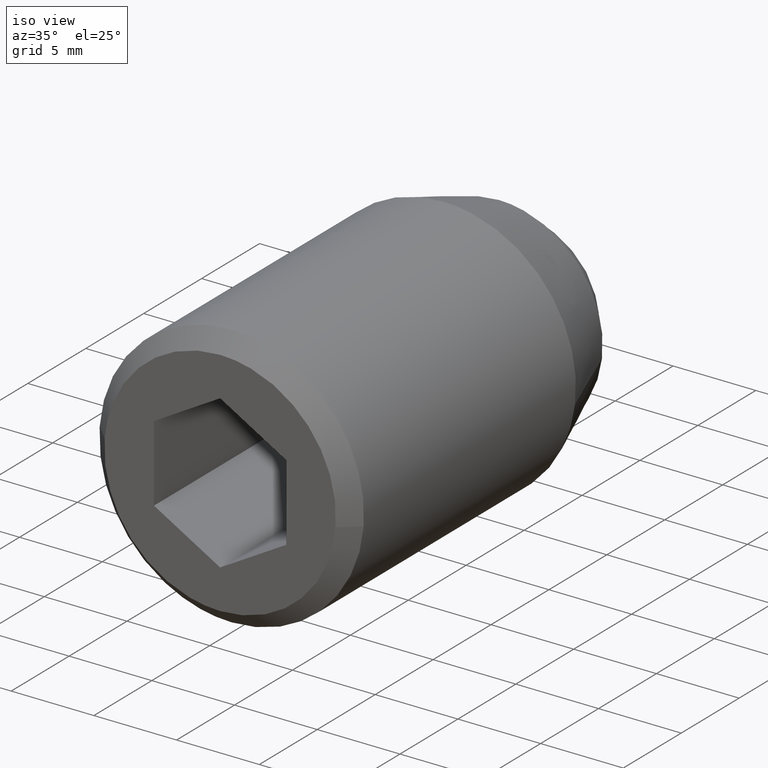
[diagram: clean part render]
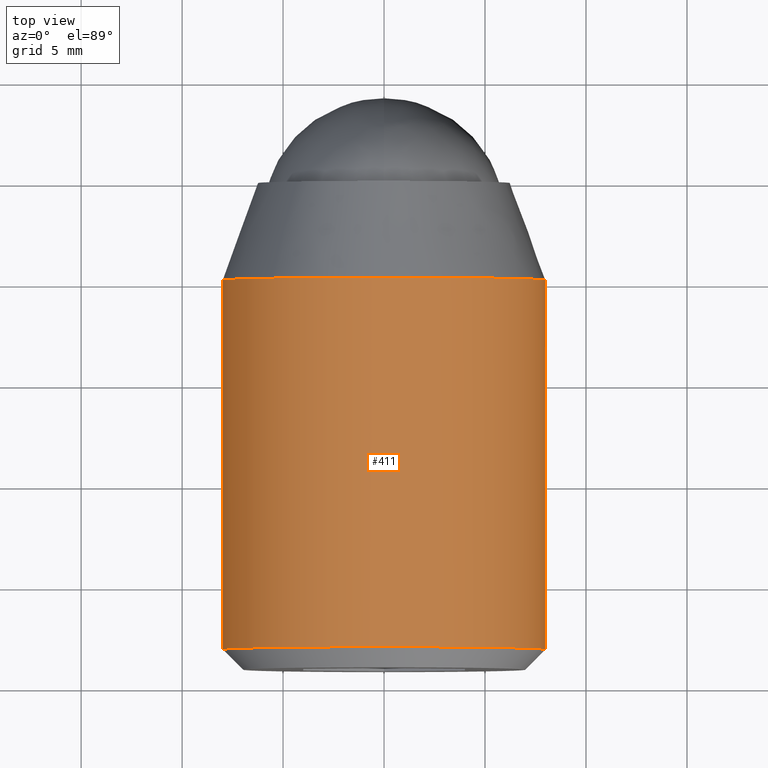
[diagram: tour spotlight — one face highlighted and labeled with its STEP entity id]
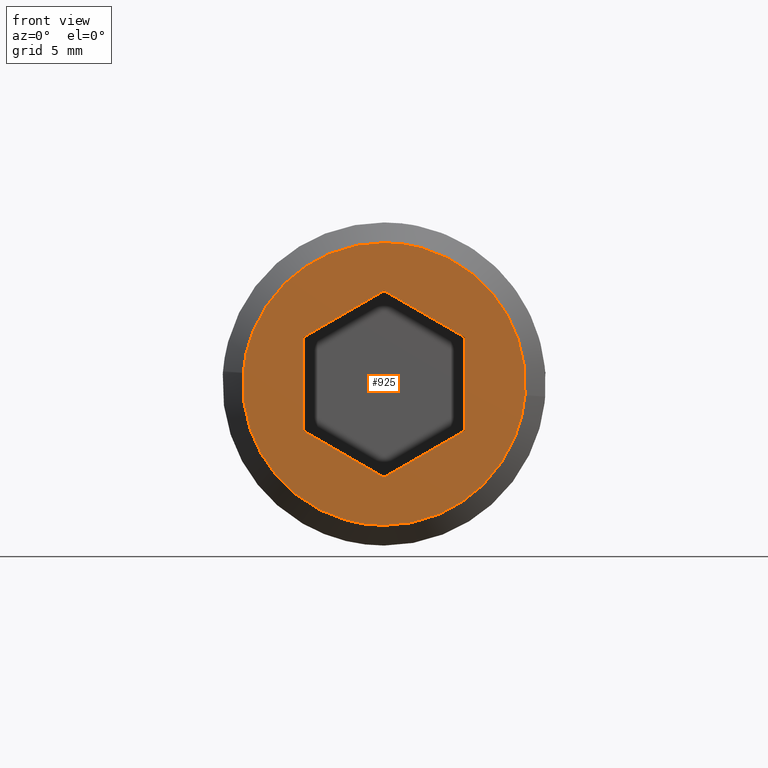
[diagram: tour spotlight — one face highlighted and labeled with its STEP entity id]
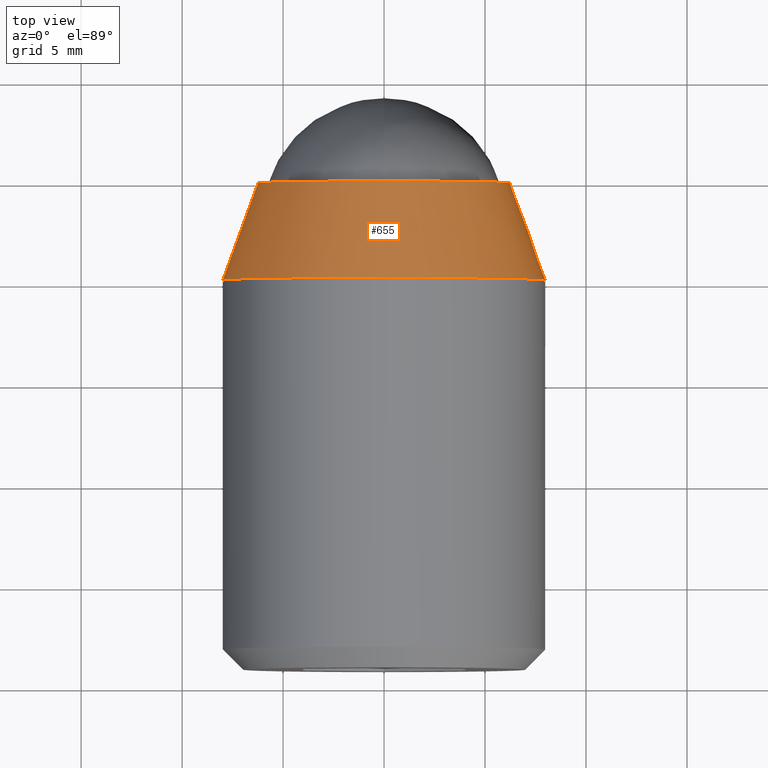
[diagram: tour spotlight — one face highlighted and labeled with its STEP entity id]
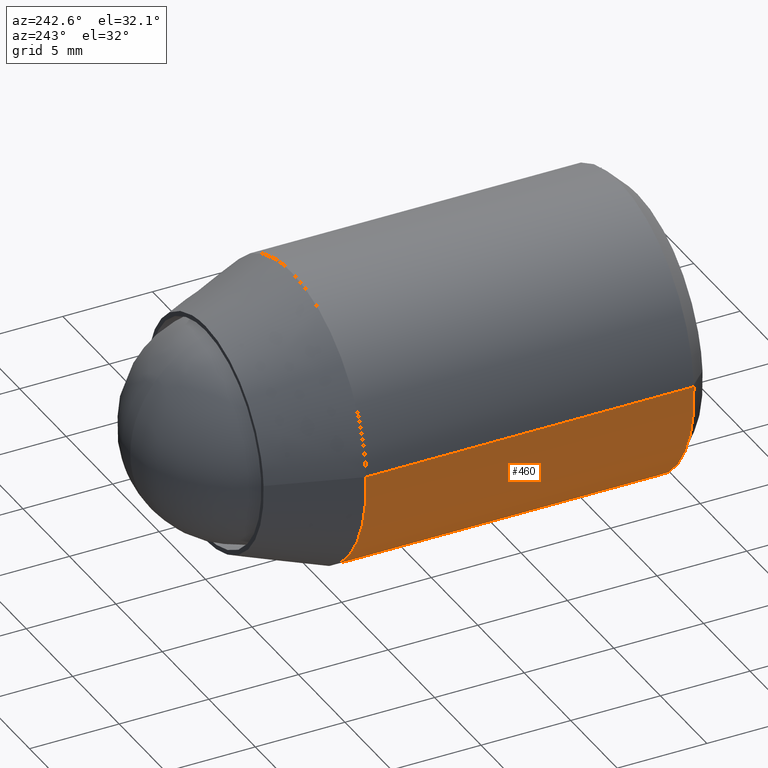
[diagram: tour spotlight — one face highlighted and labeled with its STEP entity id]
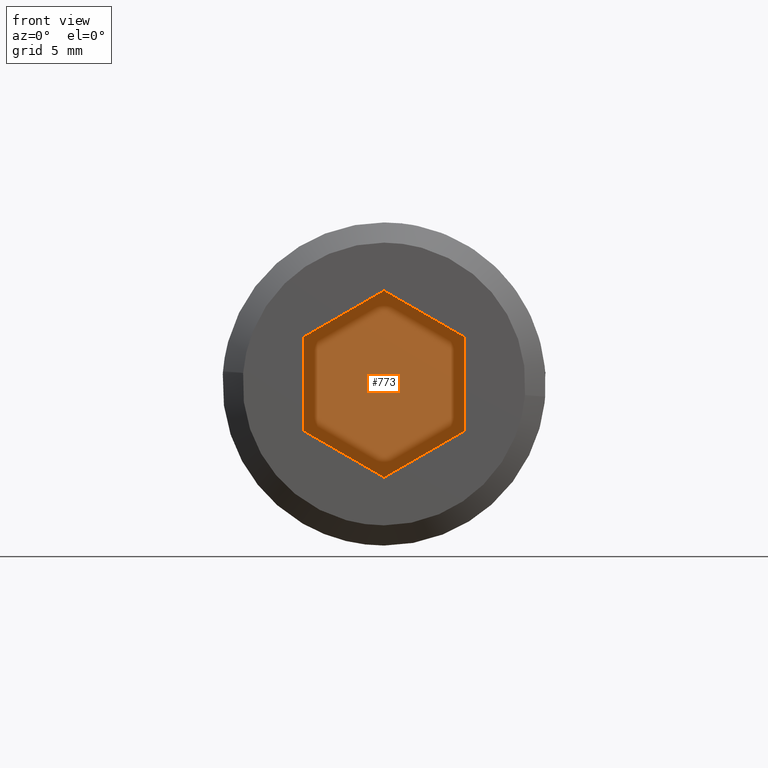
[diagram: tour spotlight — one face highlighted and labeled with its STEP entity id]
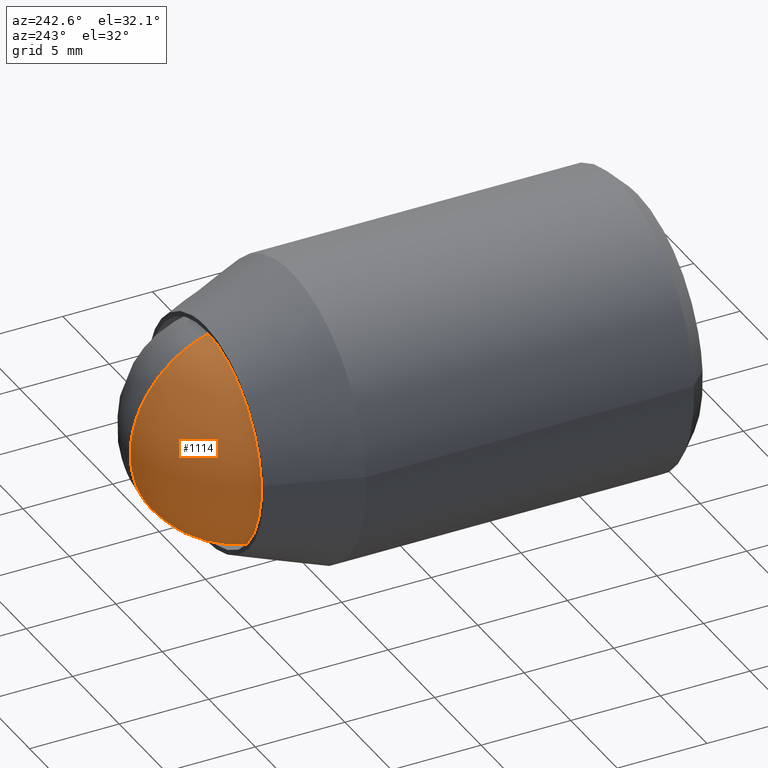
[diagram: tour spotlight — one face highlighted and labeled with its STEP entity id]
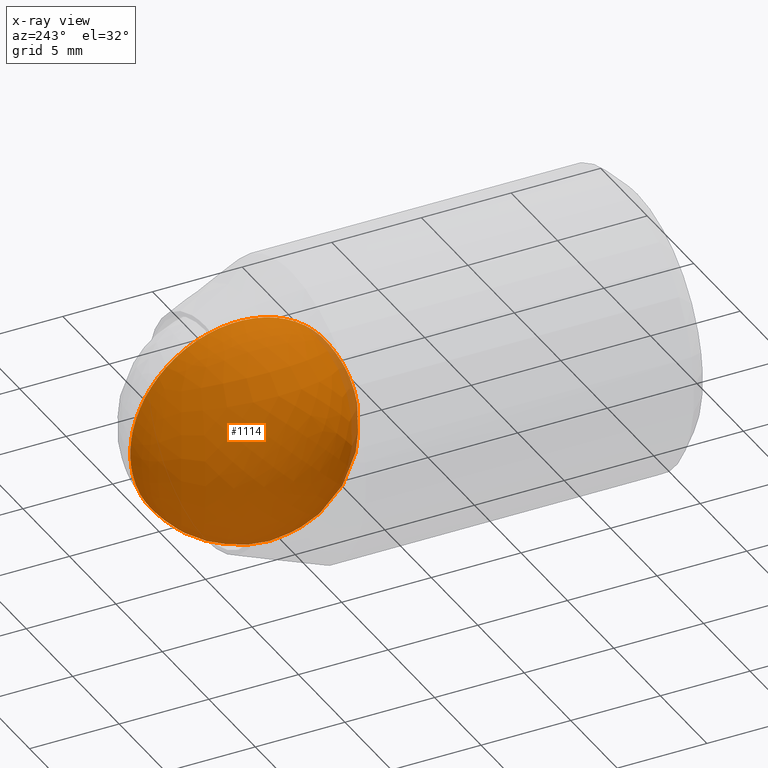
[diagram: x-ray of the same camera — body ghosted, this tour face saturated]
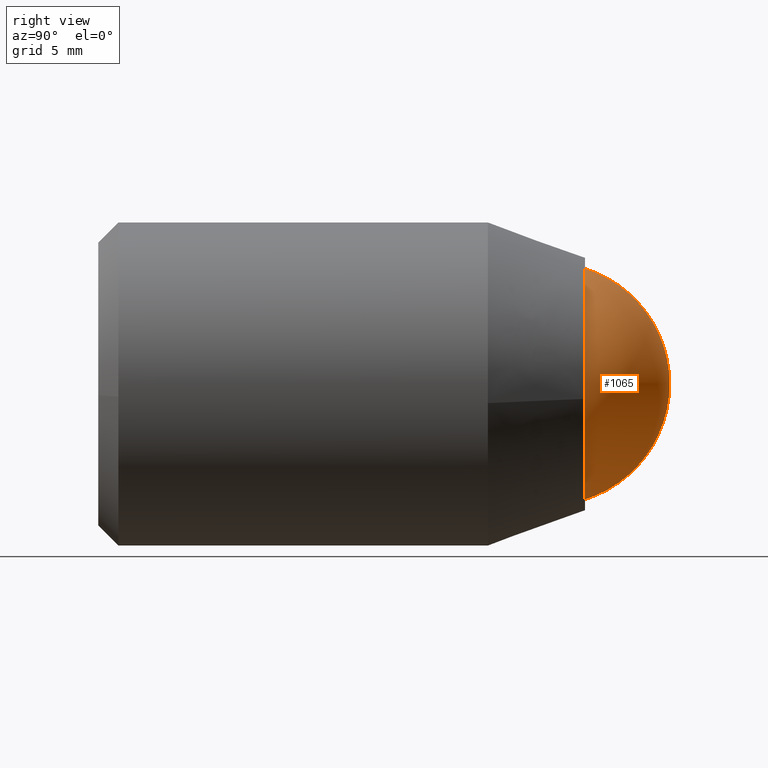
[diagram: tour spotlight — one face highlighted and labeled with its STEP entity id]
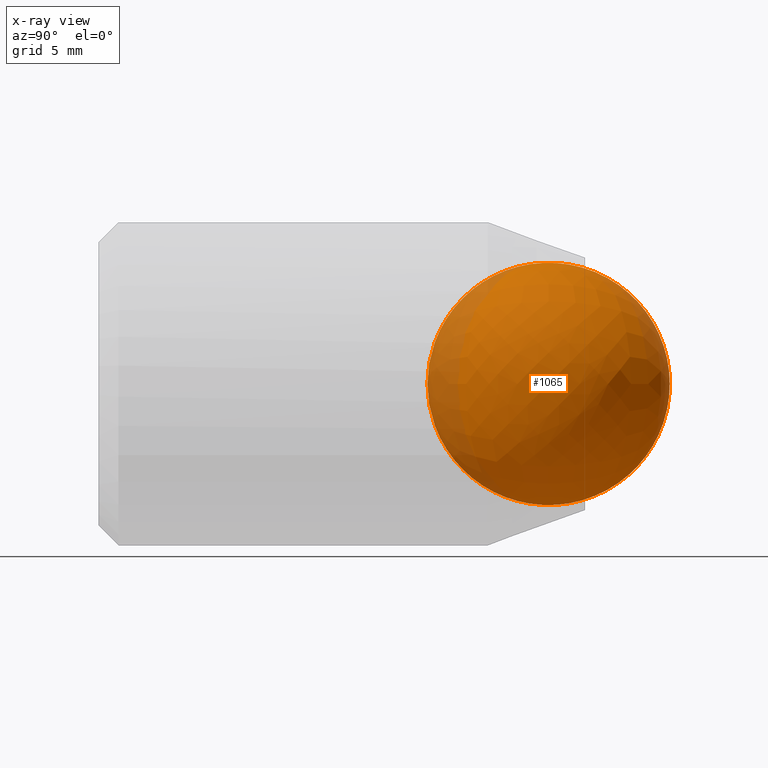
[diagram: x-ray of the same camera — body ghosted, this tour face saturated]
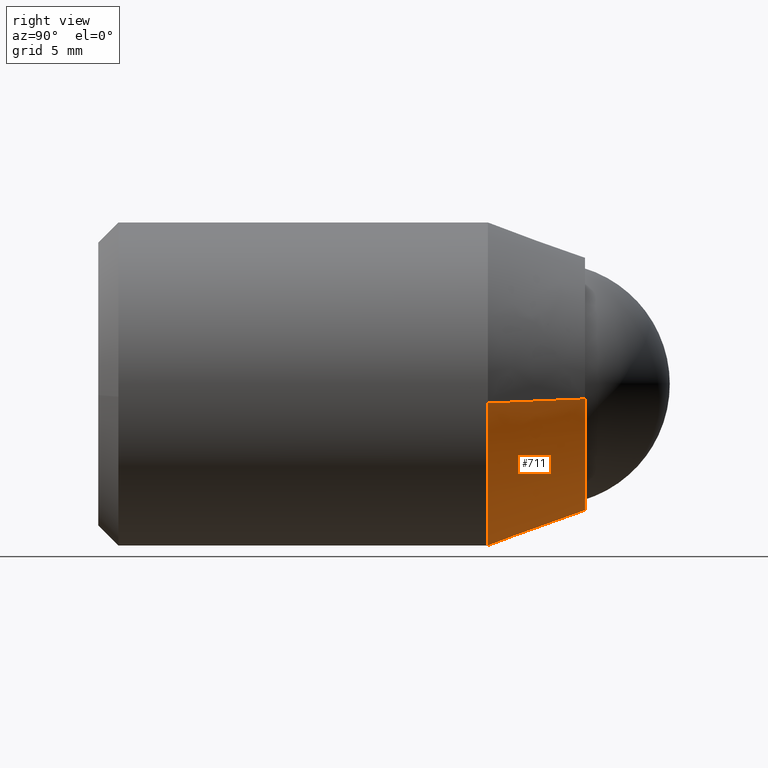
[diagram: tour spotlight — one face highlighted and labeled with its STEP entity id]
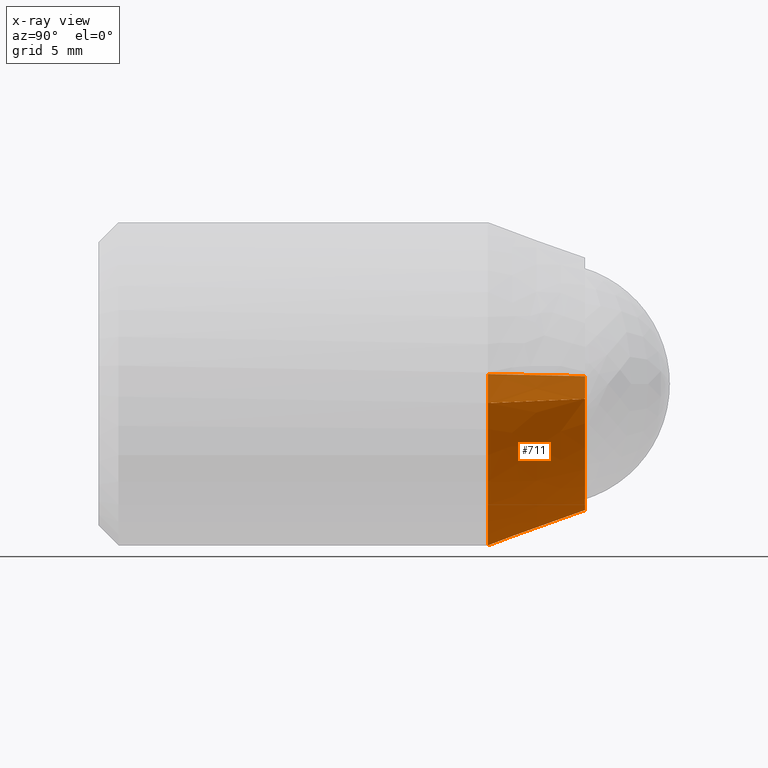
[diagram: x-ray of the same camera — body ghosted, this tour face saturated]
A machine part: a face-by-face anatomy tour. The part has 20 B-rep faces; the first image is the clean iso view, then the 8 largest visible faces are spotlighted one at a time (largest first), each with its STEP entity span.

Face 1 — top view, entity #411. In plain terms, the highlighted face is a freeform B-spline surface patch.
Definition (entity closure, byte-faithful):
#230=CARTESIAN_POINT('',(-1.874588911880106,-4.350788149999998,-7.777269212998617));
#231=CARTESIAN_POINT('',(-1.190626377330084,-4.350788149999998,-7.942127667591645));
#232=CARTESIAN_POINT('',(-0.488388316278856,-4.350788149999998,-7.985078387374935));
#233=CARTESIAN_POINT('',(7.496690071096078,-4.350788149999999,-8.473466703653791));
#234=CARTESIAN_POINT('',(7.985078387374934,-4.350788149999998,-0.488388316278857));
#235=CARTESIAN_POINT('',(8.473466703653790,-4.350788149999999,7.496690071096077));
#236=CARTESIAN_POINT('',(0.488388316278856,-4.350788149999998,7.985078387374933));
#237=CARTESIAN_POINT('',(-7.496690071096078,-4.350788149999999,8.473466703653788));
#238=CARTESIAN_POINT('',(-7.985078387374934,-4.350788149999998,0.488388316278855));
#239=CARTESIAN_POINT('',(-1.874588911880106,-23.568730296249996,-7.777269212998617));
#240=CARTESIAN_POINT('',(-1.190626377330084,-23.568730296250003,-7.942127667591645));
#241=CARTESIAN_POINT('',(-0.488388316278856,-23.568730296249999,-7.985078387374935));
#242=CARTESIAN_POINT('',(7.496690071096078,-23.568730296249999,-8.473466703653791));
#243=CARTESIAN_POINT('',(7.985078387374934,-23.568730296249999,-0.488388316278857));
#244=CARTESIAN_POINT('',(8.473466703653790,-23.568730296249999,7.496690071096077));
#245=CARTESIAN_POINT('',(0.488388316278856,-23.568730296249999,7.985078387374933));
#246=CARTESIAN_POINT('',(-7.496690071096078,-23.568730296249999,8.473466703653788));
#247=CARTESIAN_POINT('',(-7.985078387374934,-23.568730296249999,0.488388316278855));
#255=(BOUNDED_SURFACE()B_SPLINE_SURFACE(2,1,((#230,#239),(#231,#240),(#232,#241),(#233,#242),(#234,#243),(#235,#244),(#236,#245),(#237,#246),(#238,#247)),.UNSPECIFIED.,.F.,.F.,.U.)B_SPLINE_SURFACE_WITH_KNOTS((3,2,2,2,3),(2,2),(0.0,1.590580079512685,14.845414075451730,28.100248071390769,41.355082067329803),(0.0,19.217942146250000),.UNSPECIFIED.)GEOMETRIC_REPRESENTATION_ITEM()RATIONAL_B_SPLINE_SURFACE(((0.938140952186599,0.938140952186599),(0.964852813742386,0.964852813742386),(1.0,1.0),(0.707106781186548,0.707106781186548),(1.0,1.0),(0.707106781186548,0.707106781186548),(1.0,1.0),(0.707106781186548,0.707106781186548),(1.0,1.0)))REPRESENTATION_ITEM('')SURFACE());
#256=CARTESIAN_POINT('',(-1.874585919961489,-23.100000000000001,-7.777269934152516));
#257=VERTEX_POINT('',#256);
#258=CARTESIAN_POINT('',(0.0,-23.100000000000001,-8.000000000000002));
#259=VERTEX_POINT('',#258);
#260=CARTESIAN_POINT('',(-1.874585919961489,-23.099999999999998,-7.777269934152516));
#261=CARTESIAN_POINT('',(-0.950524864078650,-23.099999999999998,-8.000000000000002));
#262=CARTESIAN_POINT('',(0.0,-23.100000000000001,-8.000000000000002));
#270=(BOUNDED_CURVE()B_SPLINE_CURVE(2,(#260,#261,#262),.UNSPECIFIED.,.F.,.U.)B_SPLINE_CURVE_WITH_KNOTS((3,3),(0.959962772534174,1.0),.UNSPECIFIED.)CURVE()GEOMETRIC_REPRESENTATION_ITEM()RATIONAL_B_SPLINE_CURVE((0.921210999794980,0.953093470300672,1.0))REPRESENTATION_ITEM(''));
#271=EDGE_CURVE('',#257,#259,#270,.T.);
#272=ORIENTED_EDGE('',*,*,#271,.F.);
#273=CARTESIAN_POINT('',(-1.874585956905166,-4.808085999999999,-7.777269925247850));
#274=VERTEX_POINT('',#273);
#275=CARTESIAN_POINT('',(-1.874585956905166,-4.808085999999999,-7.777269925247850));
#276=CARTESIAN_POINT('',(-1.874585919961489,-23.100000000000001,-7.777269934152516));
#277=QUASI_UNIFORM_CURVE('',1,(#275,#276),.UNSPECIFIED.,.F.,.U.);
#278=EDGE_CURVE('',#274,#257,#277,.T.);
#279=ORIENTED_EDGE('',*,*,#278,.F.);
#280=CARTESIAN_POINT('',(0.0,-4.808085999999999,-8.000000000000002));
#281=VERTEX_POINT('',#280);
#282=CARTESIAN_POINT('',(-1.874585956905167,-4.808085999999999,-7.777269925247850));
#283=CARTESIAN_POINT('',(-0.950524883347730,-4.808085999999999,-8.000000000000002));
#284=CARTESIAN_POINT('',(0.0,-4.808085999999999,-8.000000000000002));
#292=(BOUNDED_CURVE()B_SPLINE_CURVE(2,(#282,#283,#284),.UNSPECIFIED.,.F.,.U.)B_SPLINE_CURVE_WITH_KNOTS((3,3),(0.959962771760609,1.0),.UNSPECIFIED.)CURVE()GEOMETRIC_REPRESENTATION_ITEM()RATIONAL_B_SPLINE_CURVE((0.921210998562968,0.953093469394384,1.0))REPRESENTATION_ITEM(''));
#293=EDGE_CURVE('',#274,#281,#292,.T.);
#294=ORIENTED_EDGE('',*,*,#293,.T.);
#295=CARTESIAN_POINT('',(7.944076210908794,-4.808086000002005,-0.944273877264777));
#296=VERTEX_POINT('',#295);
#297=CARTESIAN_POINT('',(0.0,-4.808085999999999,-8.000000000000002));
#298=CARTESIAN_POINT('',(7.105396207591810,-4.808085999999999,-8.000000000000002));
#299=CARTESIAN_POINT('',(7.944076210908794,-4.808086000002006,-0.944273877264777));
#307=(BOUNDED_CURVE()B_SPLINE_CURVE(2,(#297,#298,#299),.UNSPECIFIED.,.F.,.U.)B_SPLINE_CURVE_WITH_KNOTS((3,3),(0.0,0.229562473515192),.UNSPECIFIED.)CURVE()GEOMETRIC_REPRESENTATION_ITEM()RATIONAL_B_SPLINE_CURVE((1.0,0.731050832853430,0.956026754187000))REPRESENTATION_ITEM(''));
#308=EDGE_CURVE('',#281,#296,#307,.T.);
#309=ORIENTED_EDGE('',*,*,#308,.T.);
#310=CARTESIAN_POINT('',(0.0,-4.808085999999999,7.999999999999998));
#311=VERTEX_POINT('',#310);
#312=CARTESIAN_POINT('',(7.944076210908794,-4.808086000002006,-0.944273877264777));
#313=CARTESIAN_POINT('',(8.0,-4.808085999999999,-0.473792957226016));
#314=CARTESIAN_POINT('',(8.0,-4.808085999999999,-1.291960E-015));
#315=CARTESIAN_POINT('',(8.0,-4.808086000000000,7.999999999999999));
#316=CARTESIAN_POINT('',(0.0,-4.808085999999999,7.999999999999998));
#324=(BOUNDED_CURVE()B_SPLINE_CURVE(2,(#312,#313,#314,#315,#316),.UNSPECIFIED.,.F.,.U.)B_SPLINE_CURVE_WITH_KNOTS((3,2,3),(0.229562473515192,0.250000000000000,0.500000000000000),.UNSPECIFIED.)CURVE()GEOMETRIC_REPRESENTATION_ITEM()RATIONAL_B_SPLINE_CURVE((0.956026754187000,0.976055948333118,1.0,0.707106781186548,1.0))REPRESENTATION_ITEM(''));
#325=EDGE_CURVE('',#296,#311,#324,.T.);
#326=ORIENTED_EDGE('',*,*,#325,.T.);
#327=CARTESIAN_POINT('',(-7.985078210084659,-4.808085189029911,0.488387588691261));
#328=VERTEX_POINT('',#327);
#329=CARTESIAN_POINT('',(0.0,-4.808085999999999,7.999999999999998));
#330=CARTESIAN_POINT('',(-7.525649209491086,-4.808086000000000,7.999999999999999));
#331=CARTESIAN_POINT('',(-7.985078210084659,-4.808085189029911,0.488387588691261));
#339=(BOUNDED_CURVE()B_SPLINE_CURVE(2,(#329,#330,#331),.UNSPECIFIED.,.F.,.U.)B_SPLINE_CURVE_WITH_KNOTS((3,3),(0.500000000000000,0.739332977672121),.UNSPECIFIED.)CURVE()GEOMETRIC_REPRESENTATION_ITEM()RATIONAL_B_SPLINE_CURVE((1.0,0.719603975205618,0.976072074742958))REPRESENTATION_ITEM(''));
#340=EDGE_CURVE('',#311,#328,#339,.T.);
#341=ORIENTED_EDGE('',*,*,#340,.T.);
#342=CARTESIAN_POINT('',(-7.985078428014912,-23.099999999999980,0.488387651820195));
#343=VERTEX_POINT('',#342);
#344=CARTESIAN_POINT('',(-7.985078210084659,-4.808085189029911,0.488387588691261));
#345=CARTESIAN_POINT('',(-7.985078428014912,-23.099999999999980,0.488387651820195));
#346=QUASI_UNIFORM_CURVE('',1,(#344,#345),.UNSPECIFIED.,.F.,.U.);
#347=EDGE_CURVE('',#328,#343,#346,.T.);
#348=ORIENTED_EDGE('',*,*,#347,.T.);
#349=CARTESIAN_POINT('',(-7.975338669866865,-23.099999999995362,0.627672765858349));
#350=VERTEX_POINT('',#349);
#351=CARTESIAN_POINT('',(-7.975338669866865,-23.099999999995358,0.627672765858349));
#352=CARTESIAN_POINT('',(-7.980816339340284,-23.099999999999998,0.558072376000874));
#353=CARTESIAN_POINT('',(-7.985078428014912,-23.099999999999984,0.488387651820195));
#361=(BOUNDED_CURVE()B_SPLINE_CURVE(2,(#351,#352,#353),.UNSPECIFIED.,.F.,.U.)B_SPLINE_CURVE_WITH_KNOTS((3,3),(0.736331300631253,0.739332990958082),.UNSPECIFIED.)CURVE()GEOMETRIC_REPRESENTATION_ITEM()RATIONAL_B_SPLINE_CURVE((0.969723356168655,0.972855505527897,0.976072103217307))REPRESENTATION_ITEM(''));
#362=EDGE_CURVE('',#350,#343,#361,.T.);
#363=ORIENTED_EDGE('',*,*,#362,.F.);
#364=CARTESIAN_POINT('',(0.0,-23.100000000000001,7.999999999999998));
#365=VERTEX_POINT('',#364);
#366=CARTESIAN_POINT('',(0.0,-23.100000000000001,7.999999999999998));
#367=CARTESIAN_POINT('',(-7.395123933200092,-23.099999999999998,7.999999999999999));
#368=CARTESIAN_POINT('',(-7.975338669866865,-23.099999999995358,0.627672765858349));
#376=(BOUNDED_CURVE()B_SPLINE_CURVE(2,(#366,#367,#368),.UNSPECIFIED.,.F.,.U.)B_SPLINE_CURVE_WITH_KNOTS((3,3),(0.500000000000000,0.736331300631252),.UNSPECIFIED.)CURVE()GEOMETRIC_REPRESENTATION_ITEM()RATIONAL_B_SPLINE_CURVE((1.0,0.723120658606972,0.969723356168653))REPRESENTATION_ITEM(''));
#377=EDGE_CURVE('',#365,#350,#376,.T.);
#378=ORIENTED_EDGE('',*,*,#377,.F.);
#379=CARTESIAN_POINT('',(7.975338669866865,-23.099999999995362,-0.627672765858352));
#380=VERTEX_POINT('',#379);
#381=CARTESIAN_POINT('',(7.975338669866865,-23.099999999995365,-0.627672765858352));
#382=CARTESIAN_POINT('',(8.0,-23.099999999999998,-0.314320856096747));
#383=CARTESIAN_POINT('',(8.0,-23.100000000000001,-1.291960E-015));
#384=CARTESIAN_POINT('',(8.0,-23.100000000000001,7.999999999999999));
#385=CARTESIAN_POINT('',(0.0,-23.100000000000001,7.999999999999998));
#393=(BOUNDED_CURVE()B_SPLINE_CURVE(2,(#381,#382,#383,#384,#385),.UNSPECIFIED.,.F.,.U.)B_SPLINE_CURVE_WITH_KNOTS((3,2,3),(0.236331300631253,0.250000000000000,0.500000000000000),.UNSPECIFIED.)CURVE()GEOMETRIC_REPRESENTATION_ITEM()RATIONAL_B_SPLINE_CURVE((0.969723356168655,0.983986122579577,1.0,0.707106781186548,1.0))REPRESENTATION_ITEM(''));
#394=EDGE_CURVE('',#380,#365,#393,.T.);
#395=ORIENTED_EDGE('',*,*,#394,.F.);
#396=CARTESIAN_POINT('',(0.0,-23.100000000000001,-8.000000000000002));
#397=CARTESIAN_POINT('',(7.395123933200135,-23.099999999999994,-8.000000000000002));
#398=CARTESIAN_POINT('',(7.975338669866865,-23.099999999995365,-0.627672765858352));
#406=(BOUNDED_CURVE()B_SPLINE_CURVE(2,(#396,#397,#398),.UNSPECIFIED.,.F.,.U.)B_SPLINE_CURVE_WITH_KNOTS((3,3),(0.0,0.236331300631253),.UNSPECIFIED.)CURVE()GEOMETRIC_REPRESENTATION_ITEM()RATIONAL_B_SPLINE_CURVE((1.0,0.723120658606971,0.969723356168656))REPRESENTATION_ITEM(''));
#407=EDGE_CURVE('',#259,#380,#406,.T.);
#408=ORIENTED_EDGE('',*,*,#407,.F.);
#409=EDGE_LOOP('',(#272,#279,#294,#309,#326,#341,#348,#363,#378,#395,#408));
#410=FACE_OUTER_BOUND('',#409,.T.);
#411=ADVANCED_FACE('',(#410),#255,.T.);

Face 2 — front view, entity #925. In plain terms, the highlighted face is a freeform B-spline surface patch.
Definition (entity closure, byte-faithful):
#480=CARTESIAN_POINT('',(6.978421336133135,-24.099999999996900,-0.549213670118743));
#481=VERTEX_POINT('',#480);
#487=CARTESIAN_POINT('',(0.0,-24.100000000000001,-7.000000000000001));
#488=VERTEX_POINT('',#487);
#489=CARTESIAN_POINT('',(0.0,-24.100000000000001,-7.000000000000001));
#490=CARTESIAN_POINT('',(6.470733441563578,-24.099999999999994,-7.000000000000003));
#491=CARTESIAN_POINT('',(6.978421336133135,-24.099999999996900,-0.549213670118743));
#499=(BOUNDED_CURVE()B_SPLINE_CURVE(2,(#489,#490,#491),.UNSPECIFIED.,.F.,.U.)B_SPLINE_CURVE_WITH_KNOTS((3,3),(0.0,0.236331300631608),.UNSPECIFIED.)CURVE()GEOMETRIC_REPRESENTATION_ITEM()RATIONAL_B_SPLINE_CURVE((1.0,0.723120658606554,0.969723356169397))REPRESENTATION_ITEM(''));
#500=EDGE_CURVE('',#488,#481,#499,.T.);
#502=CARTESIAN_POINT('',(-6.978421336133133,-24.099999999996900,0.549213670118740));
#503=VERTEX_POINT('',#502);
#504=CARTESIAN_POINT('',(-6.978421336133134,-24.099999999996893,0.549213670118740));
#505=CARTESIAN_POINT('',(-7.0,-24.099999999999998,0.275030749077377));
#506=CARTESIAN_POINT('',(-7.0,-24.100000000000001,-1.291960E-015));
#507=CARTESIAN_POINT('',(-6.999999999999999,-24.099999999999994,-7.000000000000002));
#508=CARTESIAN_POINT('',(0.0,-24.100000000000001,-7.000000000000001));
#516=(BOUNDED_CURVE()B_SPLINE_CURVE(2,(#504,#505,#506,#507,#508),.UNSPECIFIED.,.F.,.U.)B_SPLINE_CURVE_WITH_KNOTS((3,2,3),(0.736331300631608,0.750000000000000,1.0),.UNSPECIFIED.)CURVE()GEOMETRIC_REPRESENTATION_ITEM()RATIONAL_B_SPLINE_CURVE((0.969723356169398,0.983986122579993,1.0,0.707106781186547,1.0))REPRESENTATION_ITEM(''));
#517=EDGE_CURVE('',#503,#488,#516,.T.);
#551=CARTESIAN_POINT('',(0.0,-24.100000000000001,6.999999999999999));
#552=VERTEX_POINT('',#551);
#553=CARTESIAN_POINT('',(0.0,-24.100000000000001,6.999999999999999));
#554=CARTESIAN_POINT('',(-6.470733441563616,-24.100000000000009,7.000000000000001));
#555=CARTESIAN_POINT('',(-6.978421336133133,-24.099999999996896,0.549213670118740));
#563=(BOUNDED_CURVE()B_SPLINE_CURVE(2,(#553,#554,#555),.UNSPECIFIED.,.F.,.U.)B_SPLINE_CURVE_WITH_KNOTS((3,3),(0.500000000000000,0.736331300631609),.UNSPECIFIED.)CURVE()GEOMETRIC_REPRESENTATION_ITEM()RATIONAL_B_SPLINE_CURVE((1.0,0.723120658606553,0.969723356169400))REPRESENTATION_ITEM(''));
#564=EDGE_CURVE('',#552,#503,#563,.T.);
#566=CARTESIAN_POINT('',(6.978421336133135,-24.099999999996893,-0.549213670118743));
#567=CARTESIAN_POINT('',(7.0,-24.099999999999998,-0.275030749077380));
#568=CARTESIAN_POINT('',(7.0,-24.100000000000001,-1.291960E-015));
#569=CARTESIAN_POINT('',(6.999999999999999,-24.099999999999994,6.999999999999999));
#570=CARTESIAN_POINT('',(0.0,-24.100000000000001,6.999999999999999));
#578=(BOUNDED_CURVE()B_SPLINE_CURVE(2,(#566,#567,#568,#569,#570),.UNSPECIFIED.,.F.,.U.)B_SPLINE_CURVE_WITH_KNOTS((3,2,3),(0.236331300631608,0.250000000000000,0.500000000000000),.UNSPECIFIED.)CURVE()GEOMETRIC_REPRESENTATION_ITEM()RATIONAL_B_SPLINE_CURVE((0.969723356169398,0.983986122579993,1.0,0.707106781186547,1.0))REPRESENTATION_ITEM(''));
#579=EDGE_CURVE('',#481,#552,#578,.T.);
#779=CARTESIAN_POINT('',(4.0,-24.100000000000001,2.309401000000000));
#780=VERTEX_POINT('',#779);
#781=CARTESIAN_POINT('',(0.0,-24.100000000000001,4.618802000000000));
#782=VERTEX_POINT('',#781);
#783=CARTESIAN_POINT('',(4.0,-24.100000000000001,2.309401000000000));
#784=CARTESIAN_POINT('',(0.0,-24.100000000000001,4.618802000000000));
#785=QUASI_UNIFORM_CURVE('',1,(#783,#784),.UNSPECIFIED.,.F.,.U.);
#786=EDGE_CURVE('',#780,#782,#785,.T.);
#807=CARTESIAN_POINT('',(4.0,-24.100000000000001,-2.309401000000000));
#808=VERTEX_POINT('',#807);
#809=CARTESIAN_POINT('',(4.0,-24.100000000000001,-2.309401000000000));
#810=CARTESIAN_POINT('',(4.0,-24.100000000000001,2.309401000000000));
#811=QUASI_UNIFORM_CURVE('',1,(#809,#810),.UNSPECIFIED.,.F.,.U.);
#812=EDGE_CURVE('',#808,#780,#811,.T.);
#829=CARTESIAN_POINT('',(0.0,-24.100000000000001,-4.618802000000000));
#830=VERTEX_POINT('',#829);
#831=CARTESIAN_POINT('',(0.0,-24.100000000000001,-4.618802000000000));
#832=CARTESIAN_POINT('',(4.0,-24.100000000000001,-2.309401000000000));
#833=QUASI_UNIFORM_CURVE('',1,(#831,#832),.UNSPECIFIED.,.F.,.U.);
#834=EDGE_CURVE('',#830,#808,#833,.T.);
#851=CARTESIAN_POINT('',(-4.0,-24.100000000000001,-2.309401000000000));
#852=VERTEX_POINT('',#851);
#853=CARTESIAN_POINT('',(-4.0,-24.100000000000001,-2.309401000000000));
#854=CARTESIAN_POINT('',(0.0,-24.100000000000001,-4.618802000000000));
#855=QUASI_UNIFORM_CURVE('',1,(#853,#854),.UNSPECIFIED.,.F.,.U.);
#856=EDGE_CURVE('',#852,#830,#855,.T.);
#873=CARTESIAN_POINT('',(-4.0,-24.100000000000001,2.309401000000000));
#874=VERTEX_POINT('',#873);
#875=CARTESIAN_POINT('',(-4.0,-24.100000000000001,2.309401000000000));
#876=CARTESIAN_POINT('',(-4.0,-24.100000000000001,-2.309401000000000));
#877=QUASI_UNIFORM_CURVE('',1,(#875,#876),.UNSPECIFIED.,.F.,.U.);
#878=EDGE_CURVE('',#874,#852,#877,.T.);
#895=CARTESIAN_POINT('',(0.0,-24.100000000000001,4.618802000000000));
#896=CARTESIAN_POINT('',(-4.0,-24.100000000000001,2.309401000000000));
#897=QUASI_UNIFORM_CURVE('',1,(#895,#896),.UNSPECIFIED.,.F.,.U.);
#898=EDGE_CURVE('',#782,#874,#897,.T.);
#906=CARTESIAN_POINT('',(-7.697162824804182,-24.100000000000001,7.699299972865284));
#907=CARTESIAN_POINT('',(-7.697162824804182,-24.100000000000001,-7.699300348374545));
#908=CARTESIAN_POINT('',(7.697162574464672,-24.100000000000001,7.699299972865284));
#909=CARTESIAN_POINT('',(7.697162574464672,-24.100000000000001,-7.699300348374545));
#910=B_SPLINE_SURFACE_WITH_KNOTS('',1,1,((#906,#908),(#907,#909)),.UNSPECIFIED.,.F.,.F.,.U.,(2,2),(2,2),(0.0,15.398600321239829),(0.0,15.394325399268860),.UNSPECIFIED.);
#911=ORIENTED_EDGE('',*,*,#500,.T.);
#912=ORIENTED_EDGE('',*,*,#579,.T.);
#913=ORIENTED_EDGE('',*,*,#564,.T.);
#914=ORIENTED_EDGE('',*,*,#517,.T.);
#915=EDGE_LOOP('',(#911,#912,#913,#914));
#916=FACE_OUTER_BOUND('',#915,.T.);
#917=ORIENTED_EDGE('',*,*,#898,.F.);
#918=ORIENTED_EDGE('',*,*,#786,.F.);
#919=ORIENTED_EDGE('',*,*,#812,.F.);
#920=ORIENTED_EDGE('',*,*,#834,.F.);
#921=ORIENTED_EDGE('',*,*,#856,.F.);
#922=ORIENTED_EDGE('',*,*,#878,.F.);
#923=EDGE_LOOP('',(#917,#918,#919,#920,#921,#922));
#924=FACE_BOUND('',#923,.T.);
#925=ADVANCED_FACE('',(#916,#924),#910,.T.);

Face 3 — top view, entity #655. In plain terms, the highlighted face is a freeform B-spline surface patch.
Definition (entity closure, byte-faithful):
#295=CARTESIAN_POINT('',(7.944076210908794,-4.808086000002005,-0.944273877264777));
#296=VERTEX_POINT('',#295);
#310=CARTESIAN_POINT('',(0.0,-4.808085999999999,7.999999999999998));
#311=VERTEX_POINT('',#310);
#312=CARTESIAN_POINT('',(7.944076210908794,-4.808086000002006,-0.944273877264777));
#313=CARTESIAN_POINT('',(8.0,-4.808085999999999,-0.473792957226016));
#314=CARTESIAN_POINT('',(8.0,-4.808085999999999,-1.291960E-015));
#315=CARTESIAN_POINT('',(8.0,-4.808086000000000,7.999999999999999));
#316=CARTESIAN_POINT('',(0.0,-4.808085999999999,7.999999999999998));
#324=(BOUNDED_CURVE()B_SPLINE_CURVE(2,(#312,#313,#314,#315,#316),.UNSPECIFIED.,.F.,.U.)B_SPLINE_CURVE_WITH_KNOTS((3,2,3),(0.229562473515192,0.250000000000000,0.500000000000000),.UNSPECIFIED.)CURVE()GEOMETRIC_REPRESENTATION_ITEM()RATIONAL_B_SPLINE_CURVE((0.956026754187000,0.976055948333118,1.0,0.707106781186548,1.0))REPRESENTATION_ITEM(''));
#325=EDGE_CURVE('',#296,#311,#324,.T.);
#327=CARTESIAN_POINT('',(-7.985078210084659,-4.808085189029911,0.488387588691261));
#328=VERTEX_POINT('',#327);
#329=CARTESIAN_POINT('',(0.0,-4.808085999999999,7.999999999999998));
#330=CARTESIAN_POINT('',(-7.525649209491086,-4.808086000000000,7.999999999999999));
#331=CARTESIAN_POINT('',(-7.985078210084659,-4.808085189029911,0.488387588691261));
#339=(BOUNDED_CURVE()B_SPLINE_CURVE(2,(#329,#330,#331),.UNSPECIFIED.,.F.,.U.)B_SPLINE_CURVE_WITH_KNOTS((3,3),(0.500000000000000,0.739332977672121),.UNSPECIFIED.)CURVE()GEOMETRIC_REPRESENTATION_ITEM()RATIONAL_B_SPLINE_CURVE((1.0,0.719603975205618,0.976072074742958))REPRESENTATION_ITEM(''));
#340=EDGE_CURVE('',#311,#328,#339,.T.);
#585=CARTESIAN_POINT('',(6.162865372994504,0.120202150000000,-0.732549968838508));
#586=CARTESIAN_POINT('',(6.183830638377908,0.120202150000000,-0.556171409609450));
#587=CARTESIAN_POINT('',(6.194674092705709,0.120202150000000,-0.378882498488207));
#588=CARTESIAN_POINT('',(6.573556591193915,0.120202150000000,5.815791594217502));
#589=CARTESIAN_POINT('',(0.378882498488206,0.120202150000000,6.194674092705708));
#590=CARTESIAN_POINT('',(-5.815791594217503,0.120202150000000,6.573556591193914));
#591=CARTESIAN_POINT('',(-6.194674092705709,0.120202150000000,0.378882498488205));
#592=CARTESIAN_POINT('',(7.988606481857201,-4.931293203750001,-0.949566974964458));
#593=CARTESIAN_POINT('',(8.015782680719118,-4.931293203750000,-0.720936489591182));
#594=CARTESIAN_POINT('',(8.029838494741664,-4.931293203750000,-0.491125961723623));
#595=CARTESIAN_POINT('',(8.520964456465288,-4.931293203750001,7.538712533018041));
#596=CARTESIAN_POINT('',(0.491125961723622,-4.931293203750000,8.029838494741663));
#597=CARTESIAN_POINT('',(-7.538712533018043,-4.931293203750001,8.520964456465284));
#598=CARTESIAN_POINT('',(-8.029838494741664,-4.931293203750000,0.491125961723621));
#606=(BOUNDED_SURFACE()B_SPLINE_SURFACE(2,1,((#585,#592),(#586,#593),(#587,#594),(#588,#595),(#589,#596),(#590,#597),(#591,#598)),.UNSPECIFIED.,.F.,.F.,.U.)B_SPLINE_SURFACE_WITH_KNOTS((3,2,2,3),(2,2),(0.0,0.533165342147589,13.862298895837300,27.191432449527010),(0.0,5.375689005745860),.UNSPECIFIED.)GEOMETRIC_REPRESENTATION_ITEM()RATIONAL_B_SPLINE_SURFACE(((0.977505800795127,0.977505800795127),(0.988284271247462,0.988284271247462),(1.0,1.0),(0.707106781186548,0.707106781186548),(1.0,1.0),(0.707106781186548,0.707106781186548),(1.0,1.0)))REPRESENTATION_ITEM('')SURFACE());
#607=CARTESIAN_POINT('',(6.206309539772255,-2.456808E-012,-0.737713966617867));
#608=VERTEX_POINT('',#607);
#609=CARTESIAN_POINT('',(0.0,0.0,6.249999999999999));
#610=VERTEX_POINT('',#609);
#611=CARTESIAN_POINT('',(6.206309539772255,-2.456808E-012,-0.737713966617867));
#612=CARTESIAN_POINT('',(6.250000000000000,0.0,-0.370150747837598));
#613=CARTESIAN_POINT('',(6.250000000000000,0.0,-1.291960E-015));
#614=CARTESIAN_POINT('',(6.249999999999999,0.0,6.249999999999999));
#615=CARTESIAN_POINT('',(0.0,0.0,6.249999999999999));
#623=(BOUNDED_CURVE()B_SPLINE_CURVE(2,(#611,#612,#613,#614,#615),.UNSPECIFIED.,.F.,.U.)B_SPLINE_CURVE_WITH_KNOTS((3,2,3),(0.229562473514935,0.250000000000000,0.500000000000000),.UNSPECIFIED.)CURVE()GEOMETRIC_REPRESENTATION_ITEM()RATIONAL_B_SPLINE_CURVE((0.956026754186496,0.976055948332817,1.0,0.707106781186547,1.0))REPRESENTATION_ITEM(''));
#624=EDGE_CURVE('',#608,#610,#623,.T.);
#625=ORIENTED_EDGE('',*,*,#624,.T.);
#626=CARTESIAN_POINT('',(-6.238342303415372,0.000000643780451,0.381552586751059));
#627=VERTEX_POINT('',#626);
#628=CARTESIAN_POINT('',(0.0,0.0,6.249999999999999));
#629=CARTESIAN_POINT('',(-5.879413646193248,0.0,6.249999999999999));
#630=CARTESIAN_POINT('',(-6.238342303415372,0.000000643780451,0.381552586751059));
#638=(BOUNDED_CURVE()B_SPLINE_CURVE(2,(#628,#629,#630),.UNSPECIFIED.,.F.,.U.)B_SPLINE_CURVE_WITH_KNOTS((3,3),(0.500000000000000,0.739332983568143),.UNSPECIFIED.)CURVE()GEOMETRIC_REPRESENTATION_ITEM()RATIONAL_B_SPLINE_CURVE((1.0,0.719603968297998,0.976072087379258))REPRESENTATION_ITEM(''));
#639=EDGE_CURVE('',#610,#627,#638,.T.);
#640=ORIENTED_EDGE('',*,*,#639,.T.);
#641=CARTESIAN_POINT('',(-6.238342303415372,0.000000643780451,0.381552586751059));
#642=CARTESIAN_POINT('',(-7.985078210084659,-4.808085189029911,0.488387588691261));
#643=QUASI_UNIFORM_CURVE('',1,(#641,#642),.UNSPECIFIED.,.F.,.U.);
#644=EDGE_CURVE('',#627,#328,#643,.T.);
#645=ORIENTED_EDGE('',*,*,#644,.T.);
#646=ORIENTED_EDGE('',*,*,#340,.F.);
#647=ORIENTED_EDGE('',*,*,#325,.F.);
#648=CARTESIAN_POINT('',(6.206309539772255,-2.456808E-012,-0.737713966617867));
#649=CARTESIAN_POINT('',(7.944076210908794,-4.808086000002005,-0.944273877264777));
#650=QUASI_UNIFORM_CURVE('',1,(#648,#649),.UNSPECIFIED.,.F.,.U.);
#651=EDGE_CURVE('',#608,#296,#650,.T.);
#652=ORIENTED_EDGE('',*,*,#651,.F.);
#653=EDGE_LOOP('',(#625,#640,#645,#646,#647,#652));
#654=FACE_OUTER_BOUND('',#653,.T.);
#655=ADVANCED_FACE('',(#654),#606,.T.);

Face 4 — auxiliary view, entity #460. In plain terms, the highlighted face is a freeform B-spline surface patch.
Definition (entity closure, byte-faithful):
#256=CARTESIAN_POINT('',(-1.874585919961489,-23.100000000000001,-7.777269934152516));
#257=VERTEX_POINT('',#256);
#273=CARTESIAN_POINT('',(-1.874585956905166,-4.808085999999999,-7.777269925247850));
#274=VERTEX_POINT('',#273);
#275=CARTESIAN_POINT('',(-1.874585956905166,-4.808085999999999,-7.777269925247850));
#276=CARTESIAN_POINT('',(-1.874585919961489,-23.100000000000001,-7.777269934152516));
#277=QUASI_UNIFORM_CURVE('',1,(#275,#276),.UNSPECIFIED.,.F.,.U.);
#278=EDGE_CURVE('',#274,#257,#277,.T.);
#327=CARTESIAN_POINT('',(-7.985078210084659,-4.808085189029911,0.488387588691261));
#328=VERTEX_POINT('',#327);
#342=CARTESIAN_POINT('',(-7.985078428014912,-23.099999999999980,0.488387651820195));
#343=VERTEX_POINT('',#342);
#344=CARTESIAN_POINT('',(-7.985078210084659,-4.808085189029911,0.488387588691261));
#345=CARTESIAN_POINT('',(-7.985078428014912,-23.099999999999980,0.488387651820195));
#346=QUASI_UNIFORM_CURVE('',1,(#344,#345),.UNSPECIFIED.,.F.,.U.);
#347=EDGE_CURVE('',#328,#343,#346,.T.);
#412=CARTESIAN_POINT('',(-7.985078387374934,-4.350788149999998,0.488388316278855));
#413=CARTESIAN_POINT('',(-8.394509095444208,-4.350788149999997,-6.205744588130942));
#414=CARTESIAN_POINT('',(-1.874588911880106,-4.350788149999998,-7.777269212998617));
#415=CARTESIAN_POINT('',(-7.985078387374934,-23.568730296249999,0.488388316278855));
#416=CARTESIAN_POINT('',(-8.394509095444208,-23.568730296250003,-6.205744588130942));
#417=CARTESIAN_POINT('',(-1.874588911880106,-23.568730296249996,-7.777269212998617));
#425=(BOUNDED_SURFACE()B_SPLINE_SURFACE(2,1,((#412,#415),(#413,#416),(#414,#417)),.UNSPECIFIED.,.F.,.F.,.U.)B_SPLINE_SURFACE_WITH_KNOTS((3,3),(2,2),(0.0,11.635506658838469),(0.0,19.217942146250010),.UNSPECIFIED.)GEOMETRIC_REPRESENTATION_ITEM()RATIONAL_B_SPLINE_SURFACE(((1.0,1.0),(0.742253967444162,0.742253967444162),(0.938140952186599,0.938140952186599)))REPRESENTATION_ITEM('')SURFACE());
#426=CARTESIAN_POINT('',(-7.985078428014913,-23.099999999999987,0.488387651820195));
#427=CARTESIAN_POINT('',(-8.0,-23.100000000000005,0.244421440066978));
#428=CARTESIAN_POINT('',(-8.0,-23.100000000000001,-1.291960E-015));
#429=CARTESIAN_POINT('',(-8.0,-23.100000000000001,-6.300837318904661));
#430=CARTESIAN_POINT('',(-1.874585919961489,-23.099999999999998,-7.777269934152516));
#438=(BOUNDED_CURVE()B_SPLINE_CURVE(2,(#426,#427,#428,#429,#430),.UNSPECIFIED.,.F.,.U.)B_SPLINE_CURVE_WITH_KNOTS((3,2,3),(0.739332990958083,0.750000000000000,0.959962772534174),.UNSPECIFIED.)CURVE()GEOMETRIC_REPRESENTATION_ITEM()RATIONAL_B_SPLINE_CURVE((0.976072103217309,0.987502821546402,1.0,0.754013310885876,0.921210999794980))REPRESENTATION_ITEM(''));
#439=EDGE_CURVE('',#343,#257,#438,.T.);
#440=ORIENTED_EDGE('',*,*,#439,.F.);
#441=ORIENTED_EDGE('',*,*,#347,.F.);
#442=CARTESIAN_POINT('',(-7.985078210084659,-4.808085189029911,0.488387588691261));
#443=CARTESIAN_POINT('',(-8.0,-4.808086000000000,0.244421748351203));
#444=CARTESIAN_POINT('',(-8.0,-4.808085999999999,-1.291960E-015));
#445=CARTESIAN_POINT('',(-8.0,-4.808086000000000,-6.300837288117195));
#446=CARTESIAN_POINT('',(-1.874585956905167,-4.808085999999999,-7.777269925247850));
#454=(BOUNDED_CURVE()B_SPLINE_CURVE(2,(#442,#443,#444,#445,#446),.UNSPECIFIED.,.F.,.U.)B_SPLINE_CURVE_WITH_KNOTS((3,2,3),(0.739332977672121,0.750000000000000,0.959962771760609),.UNSPECIFIED.)CURVE()GEOMETRIC_REPRESENTATION_ITEM()RATIONAL_B_SPLINE_CURVE((0.976072074742958,0.987502805980930,1.0,0.754013311792164,0.921210998562968))REPRESENTATION_ITEM(''));
#455=EDGE_CURVE('',#328,#274,#454,.T.);
#456=ORIENTED_EDGE('',*,*,#455,.T.);
#457=ORIENTED_EDGE('',*,*,#278,.T.);
#458=EDGE_LOOP('',(#440,#441,#456,#457));
#459=FACE_OUTER_BOUND('',#458,.T.);
#460=ADVANCED_FACE('',(#459),#425,.T.);

Face 5 — front view, entity #773. In plain terms, the highlighted face is a freeform B-spline surface patch.
Definition (entity closure, byte-faithful):
#724=CARTESIAN_POINT('',(-4.399599984494447,-12.600000000000000,5.080220388611748));
#725=CARTESIAN_POINT('',(4.399600199071168,-12.600000000000000,5.080220388611748));
#726=CARTESIAN_POINT('',(-4.399599984494447,-12.600000000000000,-5.080220553792980));
#727=CARTESIAN_POINT('',(4.399600199071168,-12.600000000000000,-5.080220553792980));
#728=B_SPLINE_SURFACE_WITH_KNOTS('',1,1,((#724,#726),(#725,#727)),.UNSPECIFIED.,.F.,.F.,.U.,(2,2),(2,2),(0.0,8.799200183565615),(0.0,10.160440942404730),.UNSPECIFIED.);
#729=CARTESIAN_POINT('',(0.0,-12.600000000000000,4.618802000000000));
#730=VERTEX_POINT('',#729);
#731=CARTESIAN_POINT('',(-4.0,-12.600000000000000,2.309401000000000));
#732=VERTEX_POINT('',#731);
#733=CARTESIAN_POINT('',(0.0,-12.600000000000000,4.618802000000000));
#734=CARTESIAN_POINT('',(-4.0,-12.600000000000000,2.309401000000000));
#735=QUASI_UNIFORM_CURVE('',1,(#733,#734),.UNSPECIFIED.,.F.,.U.);
#736=EDGE_CURVE('',#730,#732,#735,.T.);
#737=ORIENTED_EDGE('',*,*,#736,.T.);
#738=CARTESIAN_POINT('',(-4.0,-12.600000000000000,-2.309401000000000));
#739=VERTEX_POINT('',#738);
#740=CARTESIAN_POINT('',(-4.0,-12.600000000000000,2.309401000000000));
#741=CARTESIAN_POINT('',(-4.0,-12.600000000000000,-2.309401000000000));
#742=QUASI_UNIFORM_CURVE('',1,(#740,#741),.UNSPECIFIED.,.F.,.U.);
#743=EDGE_CURVE('',#732,#739,#742,.T.);
#744=ORIENTED_EDGE('',*,*,#743,.T.);
#745=CARTESIAN_POINT('',(0.0,-12.600000000000000,-4.618802000000000));
#746=VERTEX_POINT('',#745);
#747=CARTESIAN_POINT('',(-4.0,-12.600000000000000,-2.309401000000000));
#748=CARTESIAN_POINT('',(0.0,-12.600000000000000,-4.618802000000000));
#749=QUASI_UNIFORM_CURVE('',1,(#747,#748),.UNSPECIFIED.,.F.,.U.);
#750=EDGE_CURVE('',#739,#746,#749,.T.);
#751=ORIENTED_EDGE('',*,*,#750,.T.);
#752=CARTESIAN_POINT('',(4.0,-12.600000000000000,-2.309401000000000));
#753=VERTEX_POINT('',#752);
#754=CARTESIAN_POINT('',(0.0,-12.600000000000000,-4.618802000000000));
#755=CARTESIAN_POINT('',(4.0,-12.600000000000000,-2.309401000000000));
#756=QUASI_UNIFORM_CURVE('',1,(#754,#755),.UNSPECIFIED.,.F.,.U.);
#757=EDGE_CURVE('',#746,#753,#756,.T.);
#758=ORIENTED_EDGE('',*,*,#757,.T.);
#759=CARTESIAN_POINT('',(4.0,-12.600000000000000,2.309401000000000));
#760=VERTEX_POINT('',#759);
#761=CARTESIAN_POINT('',(4.0,-12.600000000000000,-2.309401000000000));
#762=CARTESIAN_POINT('',(4.0,-12.600000000000000,2.309401000000000));
#763=QUASI_UNIFORM_CURVE('',1,(#761,#762),.UNSPECIFIED.,.F.,.U.);
#764=EDGE_CURVE('',#753,#760,#763,.T.);
#765=ORIENTED_EDGE('',*,*,#764,.T.);
#766=CARTESIAN_POINT('',(4.0,-12.600000000000000,2.309401000000000));
#767=CARTESIAN_POINT('',(0.0,-12.600000000000000,4.618802000000000));
#768=QUASI_UNIFORM_CURVE('',1,(#766,#767),.UNSPECIFIED.,.F.,.U.);
#769=EDGE_CURVE('',#760,#730,#768,.T.);
#770=ORIENTED_EDGE('',*,*,#769,.T.);
#771=EDGE_LOOP('',(#737,#744,#751,#758,#765,#770));
#772=FACE_OUTER_BOUND('',#771,.T.);
#773=ADVANCED_FACE('',(#772),#728,.F.);

Face 6 — auxiliary view, entity #1114. An x-ray twin of the same camera follows (body ghosted, this face saturated) — the face is partly hidden behind the body. In plain terms, the highlighted face is a freeform B-spline surface patch.
Definition (entity closure, byte-faithful):
#1029=CARTESIAN_POINT('',(0.0,4.200000000000000,1.181745E-015));
#1030=VERTEX_POINT('',#1029);
#1031=CARTESIAN_POINT('',(0.0,-7.800000000000000,1.181745E-015));
#1032=VERTEX_POINT('',#1031);
#1033=CARTESIAN_POINT('',(0.0,4.200000000000000,1.181745E-015));
#1034=CARTESIAN_POINT('',(0.0,4.200000000000000,6.0));
#1035=CARTESIAN_POINT('',(0.0,-1.800000000000000,6.000000000000001));
#1036=CARTESIAN_POINT('',(0.0,-7.800000000000001,6.0));
#1037=CARTESIAN_POINT('',(0.0,-7.800000000000000,1.181745E-015));
#1045=(BOUNDED_CURVE()B_SPLINE_CURVE(2,(#1033,#1034,#1035,#1036,#1037),.UNSPECIFIED.,.F.,.U.)B_SPLINE_CURVE_WITH_KNOTS((3,2,3),(0.0,0.500000000000000,1.0),.UNSPECIFIED.)CURVE()GEOMETRIC_REPRESENTATION_ITEM()RATIONAL_B_SPLINE_CURVE((1.0,0.707106781186548,1.0,0.707106781186548,1.0))REPRESENTATION_ITEM(''));
#1046=EDGE_CURVE('',#1030,#1032,#1045,.T.);
#1048=CARTESIAN_POINT('',(0.0,4.200000000000000,1.181745E-015));
#1049=CARTESIAN_POINT('',(0.0,4.200000000000000,-5.999999999999999));
#1050=CARTESIAN_POINT('',(0.0,-1.800000000000000,-5.999999999999999));
#1051=CARTESIAN_POINT('',(0.0,-7.800000000000001,-5.999999999999999));
#1052=CARTESIAN_POINT('',(0.0,-7.800000000000000,1.181745E-015));
#1060=(BOUNDED_CURVE()B_SPLINE_CURVE(2,(#1048,#1049,#1050,#1051,#1052),.UNSPECIFIED.,.F.,.U.)B_SPLINE_CURVE_WITH_KNOTS((3,2,3),(0.0,0.500000000000000,1.0),.UNSPECIFIED.)CURVE()GEOMETRIC_REPRESENTATION_ITEM()RATIONAL_B_SPLINE_CURVE((1.0,0.707106781186548,1.0,0.707106781186548,1.0))REPRESENTATION_ITEM(''));
#1061=EDGE_CURVE('',#1030,#1032,#1060,.T.);
#1066=CARTESIAN_POINT('',(2.250000000000000,-5.733033180638068,3.933033180638069));
#1067=CARTESIAN_POINT('',(1.471698113207548,-5.361992314540136,4.749323086053517));
#1068=CARTESIAN_POINT('',(0.285714285714286,-3.298298354528788,5.993193418115152));
#1069=CARTESIAN_POINT('',(0.285714285714286,-0.301701645471213,5.993193418115152));
#1070=CARTESIAN_POINT('',(1.471698113207548,1.761992314540136,4.749323086053517));
#1071=CARTESIAN_POINT('',(2.250000000000000,2.133033180638067,3.933033180638069));
#1072=CARTESIAN_POINT('',(1.471698113207548,-6.549323086053517,3.561992314540138));
#1073=CARTESIAN_POINT('',(0.285714285714286,-6.294895063586361,4.494895063586363));
#1074=CARTESIAN_POINT('',(-1.741935483870967,-3.829952609361583,6.089857828084750));
#1075=CARTESIAN_POINT('',(-1.741935483870967,0.229952609361583,6.089857828084750));
#1076=CARTESIAN_POINT('',(0.285714285714286,2.694895063586363,4.494895063586363));
#1077=CARTESIAN_POINT('',(1.471698113207548,2.949323086053516,3.561992314540138));
#1078=CARTESIAN_POINT('',(0.285714285714286,-7.793193418115152,1.498298354528789));
#1079=CARTESIAN_POINT('',(-1.741935483870967,-7.889857828084748,2.029952609361584));
#1080=CARTESIAN_POINT('',(-5.999999999999998,-4.946426544510453,3.146426544510455));
#1081=CARTESIAN_POINT('',(-5.999999999999998,1.346426544510454,3.146426544510455));
#1082=CARTESIAN_POINT('',(-1.741935483870967,4.289857828084750,2.029952609361584));
#1083=CARTESIAN_POINT('',(0.285714285714286,4.193193418115151,1.498298354528789));
#1084=CARTESIAN_POINT('',(0.285714285714286,-7.793193418115152,-1.498298354528786));
#1085=CARTESIAN_POINT('',(-1.741935483870967,-7.889857828084748,-2.029952609361581));
#1086=CARTESIAN_POINT('',(-5.999999999999998,-4.946426544510453,-3.146426544510452));
#1087=CARTESIAN_POINT('',(-5.999999999999998,1.346426544510454,-3.146426544510452));
#1088=CARTESIAN_POINT('',(-1.741935483870967,4.289857828084750,-2.029952609361581));
#1089=CARTESIAN_POINT('',(0.285714285714286,4.193193418115151,-1.498298354528786));
#1090=CARTESIAN_POINT('',(1.471698113207548,-6.549323086053517,-3.561992314540135));
#1091=CARTESIAN_POINT('',(0.285714285714286,-6.294895063586361,-4.494895063586362));
#1092=CARTESIAN_POINT('',(-1.741935483870967,-3.829952609361583,-6.089857828084748));
#1093=CARTESIAN_POINT('',(-1.741935483870967,0.229952609361583,-6.089857828084748));
#1094=CARTESIAN_POINT('',(0.285714285714286,2.694895063586363,-4.494895063586362));
#1095=CARTESIAN_POINT('',(1.471698113207548,2.949323086053516,-3.561992314540135));
#1096=CARTESIAN_POINT('',(2.250000000000000,-5.733033180638068,-3.933033180638066));
#1097=CARTESIAN_POINT('',(1.471698113207548,-5.361992314540136,-4.749323086053514));
#1098=CARTESIAN_POINT('',(0.285714285714286,-3.298298354528788,-5.993193418115148));
#1099=CARTESIAN_POINT('',(0.285714285714286,-0.301701645471213,-5.993193418115148));
#1100=CARTESIAN_POINT('',(1.471698113207548,1.761992314540136,-4.749323086053514));
#1101=CARTESIAN_POINT('',(2.250000000000000,2.133033180638067,-3.933033180638066));
#1109=(BOUNDED_SURFACE()B_SPLINE_SURFACE(2,2,((#1066,#1072,#1078,#1084,#1090,#1096),(#1067,#1073,#1079,#1085,#1091,#1097),(#1068,#1074,#1080,#1086,#1092,#1098),(#1069,#1075,#1081,#1087,#1093,#1099),(#1070,#1076,#1082,#1088,#1094,#1100),(#1071,#1077,#1083,#1089,#1095,#1101)),.UNSPECIFIED.,.F.,.F.,.U.)B_SPLINE_SURFACE_WITH_KNOTS((3,1,1,1,3),(3,1,1,1,3),(0.0,5.532178539798601,11.064357079597199,16.596535619395802,22.128714159194399),(0.0,5.532178539798601,11.064357079597199,16.596535619395802,22.128714159194399),.UNSPECIFIED.)GEOMETRIC_REPRESENTATION_ITEM()RATIONAL_B_SPLINE_SURFACE(((3.200000000000000,2.650000000000000,2.100000000000000,2.100000000000000,2.650000000000000,3.200000000000000),(2.650000000000000,2.100000000000000,1.550000000000000,1.550000000000000,2.100000000000000,2.650000000000000),(2.100000000000000,1.550000000000000,1.0,1.0,1.550000000000000,2.100000000000000),(2.100000000000000,1.550000000000000,1.0,1.0,1.550000000000000,2.100000000000000),(2.650000000000000,2.100000000000000,1.550000000000000,1.550000000000000,2.100000000000000,2.650000000000000),(3.200000000000000,2.650000000000000,2.100000000000000,2.100000000000000,2.650000000000000,3.200000000000000)))REPRESENTATION_ITEM('')SURFACE());
#1110=ORIENTED_EDGE('',*,*,#1061,.T.);
#1111=ORIENTED_EDGE('',*,*,#1046,.F.);
#1112=EDGE_LOOP('',(#1110,#1111));
#1113=FACE_OUTER_BOUND('',#1112,.T.);
#1114=ADVANCED_FACE('',(#1113),#1109,.T.);

Face 7 — right view, entity #1065. An x-ray twin of the same camera follows (body ghosted, this face saturated) — the face is partly hidden behind the body. In plain terms, the highlighted face is a freeform B-spline surface patch.
Definition (entity closure, byte-faithful):
#985=CARTESIAN_POINT('',(-2.250000000000000,-5.733033180638068,-3.933033180638066));
#986=CARTESIAN_POINT('',(-1.471698113207548,-5.361992314540136,-4.749323086053514));
#987=CARTESIAN_POINT('',(-0.285714285714286,-3.298298354528788,-5.993193418115148));
#988=CARTESIAN_POINT('',(-0.285714285714286,-0.301701645471213,-5.993193418115148));
#989=CARTESIAN_POINT('',(-1.471698113207548,1.761992314540136,-4.749323086053514));
#990=CARTESIAN_POINT('',(-2.250000000000000,2.133033180638067,-3.933033180638066));
#991=CARTESIAN_POINT('',(-1.471698113207548,-6.549323086053517,-3.561992314540135));
#992=CARTESIAN_POINT('',(-0.285714285714286,-6.294895063586361,-4.494895063586362));
#993=CARTESIAN_POINT('',(1.741935483870967,-3.829952609361583,-6.089857828084748));
#994=CARTESIAN_POINT('',(1.741935483870967,0.229952609361583,-6.089857828084748));
#995=CARTESIAN_POINT('',(-0.285714285714286,2.694895063586363,-4.494895063586362));
#996=CARTESIAN_POINT('',(-1.471698113207548,2.949323086053516,-3.561992314540135));
#997=CARTESIAN_POINT('',(-0.285714285714286,-7.793193418115152,-1.498298354528786));
#998=CARTESIAN_POINT('',(1.741935483870967,-7.889857828084748,-2.029952609361581));
#999=CARTESIAN_POINT('',(5.999999999999998,-4.946426544510453,-3.146426544510452));
#1000=CARTESIAN_POINT('',(5.999999999999998,1.346426544510454,-3.146426544510452));
#1001=CARTESIAN_POINT('',(1.741935483870967,4.289857828084750,-2.029952609361581));
#1002=CARTESIAN_POINT('',(-0.285714285714286,4.193193418115151,-1.498298354528786));
#1003=CARTESIAN_POINT('',(-0.285714285714286,-7.793193418115152,1.498298354528789));
#1004=CARTESIAN_POINT('',(1.741935483870967,-7.889857828084748,2.029952609361584));
#1005=CARTESIAN_POINT('',(5.999999999999998,-4.946426544510453,3.146426544510455));
#1006=CARTESIAN_POINT('',(5.999999999999998,1.346426544510454,3.146426544510455));
#1007=CARTESIAN_POINT('',(1.741935483870967,4.289857828084750,2.029952609361584));
#1008=CARTESIAN_POINT('',(-0.285714285714286,4.193193418115151,1.498298354528789));
#1009=CARTESIAN_POINT('',(-1.471698113207548,-6.549323086053517,3.561992314540138));
#1010=CARTESIAN_POINT('',(-0.285714285714286,-6.294895063586361,4.494895063586363));
#1011=CARTESIAN_POINT('',(1.741935483870967,-3.829952609361583,6.089857828084750));
#1012=CARTESIAN_POINT('',(1.741935483870967,0.229952609361583,6.089857828084750));
#1013=CARTESIAN_POINT('',(-0.285714285714286,2.694895063586363,4.494895063586363));
#1014=CARTESIAN_POINT('',(-1.471698113207548,2.949323086053516,3.561992314540138));
#1015=CARTESIAN_POINT('',(-2.250000000000000,-5.733033180638068,3.933033180638069));
#1016=CARTESIAN_POINT('',(-1.471698113207548,-5.361992314540136,4.749323086053517));
#1017=CARTESIAN_POINT('',(-0.285714285714286,-3.298298354528788,5.993193418115152));
#1018=CARTESIAN_POINT('',(-0.285714285714286,-0.301701645471213,5.993193418115152));
#1019=CARTESIAN_POINT('',(-1.471698113207548,1.761992314540136,4.749323086053517));
#1020=CARTESIAN_POINT('',(-2.250000000000000,2.133033180638067,3.933033180638069));
#1028=(BOUNDED_SURFACE()B_SPLINE_SURFACE(2,2,((#985,#991,#997,#1003,#1009,#1015),(#986,#992,#998,#1004,#1010,#1016),(#987,#993,#999,#1005,#1011,#1017),(#988,#994,#1000,#1006,#1012,#1018),(#989,#995,#1001,#1007,#1013,#1019),(#990,#996,#1002,#1008,#1014,#1020)),.UNSPECIFIED.,.F.,.F.,.U.)B_SPLINE_SURFACE_WITH_KNOTS((3,1,1,1,3),(3,1,1,1,3),(0.0,5.532178539798601,11.064357079597199,16.596535619395802,22.128714159194399),(0.0,5.532178539798601,11.064357079597199,16.596535619395802,22.128714159194399),.UNSPECIFIED.)GEOMETRIC_REPRESENTATION_ITEM()RATIONAL_B_SPLINE_SURFACE(((3.200000000000000,2.650000000000000,2.100000000000000,2.100000000000000,2.650000000000000,3.200000000000000),(2.650000000000000,2.100000000000000,1.550000000000000,1.550000000000000,2.100000000000000,2.650000000000000),(2.100000000000000,1.550000000000000,1.0,1.0,1.550000000000000,2.100000000000000),(2.100000000000000,1.550000000000000,1.0,1.0,1.550000000000000,2.100000000000000),(2.650000000000000,2.100000000000000,1.550000000000000,1.550000000000000,2.100000000000000,2.650000000000000),(3.200000000000000,2.650000000000000,2.100000000000000,2.100000000000000,2.650000000000000,3.200000000000000)))REPRESENTATION_ITEM('')SURFACE());
#1029=CARTESIAN_POINT('',(0.0,4.200000000000000,1.181745E-015));
#1030=VERTEX_POINT('',#1029);
#1031=CARTESIAN_POINT('',(0.0,-7.800000000000000,1.181745E-015));
#1032=VERTEX_POINT('',#1031);
#1033=CARTESIAN_POINT('',(0.0,4.200000000000000,1.181745E-015));
#1034=CARTESIAN_POINT('',(0.0,4.200000000000000,6.0));
#1035=CARTESIAN_POINT('',(0.0,-1.800000000000000,6.000000000000001));
#1036=CARTESIAN_POINT('',(0.0,-7.800000000000001,6.0));
#1037=CARTESIAN_POINT('',(0.0,-7.800000000000000,1.181745E-015));
#1045=(BOUNDED_CURVE()B_SPLINE_CURVE(2,(#1033,#1034,#1035,#1036,#1037),.UNSPECIFIED.,.F.,.U.)B_SPLINE_CURVE_WITH_KNOTS((3,2,3),(0.0,0.500000000000000,1.0),.UNSPECIFIED.)CURVE()GEOMETRIC_REPRESENTATION_ITEM()RATIONAL_B_SPLINE_CURVE((1.0,0.707106781186548,1.0,0.707106781186548,1.0))REPRESENTATION_ITEM(''));
#1046=EDGE_CURVE('',#1030,#1032,#1045,.T.);
#1047=ORIENTED_EDGE('',*,*,#1046,.T.);
#1048=CARTESIAN_POINT('',(0.0,4.200000000000000,1.181745E-015));
#1049=CARTESIAN_POINT('',(0.0,4.200000000000000,-5.999999999999999));
#1050=CARTESIAN_POINT('',(0.0,-1.800000000000000,-5.999999999999999));
#1051=CARTESIAN_POINT('',(0.0,-7.800000000000001,-5.999999999999999));
#1052=CARTESIAN_POINT('',(0.0,-7.800000000000000,1.181745E-015));
#1060=(BOUNDED_CURVE()B_SPLINE_CURVE(2,(#1048,#1049,#1050,#1051,#1052),.UNSPECIFIED.,.F.,.U.)B_SPLINE_CURVE_WITH_KNOTS((3,2,3),(0.0,0.500000000000000,1.0),.UNSPECIFIED.)CURVE()GEOMETRIC_REPRESENTATION_ITEM()RATIONAL_B_SPLINE_CURVE((1.0,0.707106781186548,1.0,0.707106781186548,1.0))REPRESENTATION_ITEM(''));
#1061=EDGE_CURVE('',#1030,#1032,#1060,.T.);
#1062=ORIENTED_EDGE('',*,*,#1061,.F.);
#1063=EDGE_LOOP('',(#1047,#1062));
#1064=FACE_OUTER_BOUND('',#1063,.T.);
#1065=ADVANCED_FACE('',(#1064),#1028,.T.);

Face 8 — right view, entity #711. An x-ray twin of the same camera follows (body ghosted, this face saturated) — the face is partly hidden behind the body. In plain terms, the highlighted face is a freeform B-spline surface patch.
Definition (entity closure, byte-faithful):
#273=CARTESIAN_POINT('',(-1.874585956905166,-4.808085999999999,-7.777269925247850));
#274=VERTEX_POINT('',#273);
#280=CARTESIAN_POINT('',(0.0,-4.808085999999999,-8.000000000000002));
#281=VERTEX_POINT('',#280);
#282=CARTESIAN_POINT('',(-1.874585956905167,-4.808085999999999,-7.777269925247850));
#283=CARTESIAN_POINT('',(-0.950524883347730,-4.808085999999999,-8.000000000000002));
#284=CARTESIAN_POINT('',(0.0,-4.808085999999999,-8.000000000000002));
#292=(BOUNDED_CURVE()B_SPLINE_CURVE(2,(#282,#283,#284),.UNSPECIFIED.,.F.,.U.)B_SPLINE_CURVE_WITH_KNOTS((3,3),(0.959962771760609,1.0),.UNSPECIFIED.)CURVE()GEOMETRIC_REPRESENTATION_ITEM()RATIONAL_B_SPLINE_CURVE((0.921210998562968,0.953093469394384,1.0))REPRESENTATION_ITEM(''));
#293=EDGE_CURVE('',#274,#281,#292,.T.);
#295=CARTESIAN_POINT('',(7.944076210908794,-4.808086000002005,-0.944273877264777));
#296=VERTEX_POINT('',#295);
#297=CARTESIAN_POINT('',(0.0,-4.808085999999999,-8.000000000000002));
#298=CARTESIAN_POINT('',(7.105396207591810,-4.808085999999999,-8.000000000000002));
#299=CARTESIAN_POINT('',(7.944076210908794,-4.808086000002006,-0.944273877264777));
#307=(BOUNDED_CURVE()B_SPLINE_CURVE(2,(#297,#298,#299),.UNSPECIFIED.,.F.,.U.)B_SPLINE_CURVE_WITH_KNOTS((3,3),(0.0,0.229562473515192),.UNSPECIFIED.)CURVE()GEOMETRIC_REPRESENTATION_ITEM()RATIONAL_B_SPLINE_CURVE((1.0,0.731050832853430,0.956026754187000))REPRESENTATION_ITEM(''));
#308=EDGE_CURVE('',#281,#296,#307,.T.);
#327=CARTESIAN_POINT('',(-7.985078210084659,-4.808085189029911,0.488387588691261));
#328=VERTEX_POINT('',#327);
#442=CARTESIAN_POINT('',(-7.985078210084659,-4.808085189029911,0.488387588691261));
#443=CARTESIAN_POINT('',(-8.0,-4.808086000000000,0.244421748351203));
#444=CARTESIAN_POINT('',(-8.0,-4.808085999999999,-1.291960E-015));
#445=CARTESIAN_POINT('',(-8.0,-4.808086000000000,-6.300837288117195));
#446=CARTESIAN_POINT('',(-1.874585956905167,-4.808085999999999,-7.777269925247850));
#454=(BOUNDED_CURVE()B_SPLINE_CURVE(2,(#442,#443,#444,#445,#446),.UNSPECIFIED.,.F.,.U.)B_SPLINE_CURVE_WITH_KNOTS((3,2,3),(0.739332977672121,0.750000000000000,0.959962771760609),.UNSPECIFIED.)CURVE()GEOMETRIC_REPRESENTATION_ITEM()RATIONAL_B_SPLINE_CURVE((0.976072074742958,0.987502805980930,1.0,0.754013311792164,0.921210998562968))REPRESENTATION_ITEM(''));
#455=EDGE_CURVE('',#328,#274,#454,.T.);
#607=CARTESIAN_POINT('',(6.206309539772255,-2.456808E-012,-0.737713966617867));
#608=VERTEX_POINT('',#607);
#626=CARTESIAN_POINT('',(-6.238342303415372,0.000000643780451,0.381552586751059));
#627=VERTEX_POINT('',#626);
#641=CARTESIAN_POINT('',(-6.238342303415372,0.000000643780451,0.381552586751059));
#642=CARTESIAN_POINT('',(-7.985078210084659,-4.808085189029911,0.488387588691261));
#643=QUASI_UNIFORM_CURVE('',1,(#641,#642),.UNSPECIFIED.,.F.,.U.);
#644=EDGE_CURVE('',#627,#328,#643,.T.);
#648=CARTESIAN_POINT('',(6.206309539772255,-2.456808E-012,-0.737713966617867));
#649=CARTESIAN_POINT('',(7.944076210908794,-4.808086000002005,-0.944273877264777));
#650=QUASI_UNIFORM_CURVE('',1,(#648,#649),.UNSPECIFIED.,.F.,.U.);
#651=EDGE_CURVE('',#608,#296,#650,.T.);
#656=CARTESIAN_POINT('',(-6.194674092705709,0.120202150000000,0.378882498488205));
#657=CARTESIAN_POINT('',(-6.573556591193915,0.120202150000000,-5.815791594217505));
#658=CARTESIAN_POINT('',(-0.378882498488206,0.120202150000000,-6.194674092705710));
#659=CARTESIAN_POINT('',(5.471079290022653,0.120202150000000,-6.552473083471249));
#660=CARTESIAN_POINT('',(6.162865372994504,0.120202150000000,-0.732549968838508));
#661=CARTESIAN_POINT('',(-8.029838494741664,-4.931293203750000,0.491125961723621));
#662=CARTESIAN_POINT('',(-8.520964456465288,-4.931293203750001,-7.538712533018043));
#663=CARTESIAN_POINT('',(-0.491125961723622,-4.931293203750000,-8.029838494741666));
#664=CARTESIAN_POINT('',(7.091879642633341,-4.931293203750000,-8.493634986119945));
#665=CARTESIAN_POINT('',(7.988606481857201,-4.931293203750001,-0.949566974964458));
#673=(BOUNDED_SURFACE()B_SPLINE_SURFACE(2,1,((#656,#661),(#657,#662),(#658,#663),(#659,#664),(#660,#665)),.UNSPECIFIED.,.F.,.F.,.U.)B_SPLINE_SURFACE_WITH_KNOTS((3,2,3),(2,2),(0.0,13.329133553689720,26.125101765231840),(0.0,5.375689005745859),.UNSPECIFIED.)GEOMETRIC_REPRESENTATION_ITEM()RATIONAL_B_SPLINE_SURFACE(((1.0,1.0),(0.707106781186548,0.707106781186548),(1.0,1.0),(0.718822509939086,0.718822509939086),(0.977505800795127,0.977505800795127)))REPRESENTATION_ITEM('')SURFACE());
#674=CARTESIAN_POINT('',(0.0,0.0,-6.250000000000001));
#675=VERTEX_POINT('',#674);
#676=CARTESIAN_POINT('',(0.0,0.0,-6.250000000000001));
#677=CARTESIAN_POINT('',(5.551090787172588,0.0,-6.250000000000003));
#678=CARTESIAN_POINT('',(6.206309539772255,-2.456808E-012,-0.737713966617867));
#686=(BOUNDED_CURVE()B_SPLINE_CURVE(2,(#676,#677,#678),.UNSPECIFIED.,.F.,.U.)B_SPLINE_CURVE_WITH_KNOTS((3,3),(0.0,0.229562473514935),.UNSPECIFIED.)CURVE()GEOMETRIC_REPRESENTATION_ITEM()RATIONAL_B_SPLINE_CURVE((1.0,0.731050832853731,0.956026754186496))REPRESENTATION_ITEM(''));
#687=EDGE_CURVE('',#675,#608,#686,.T.);
#688=ORIENTED_EDGE('',*,*,#687,.T.);
#689=ORIENTED_EDGE('',*,*,#651,.T.);
#690=ORIENTED_EDGE('',*,*,#308,.F.);
#691=ORIENTED_EDGE('',*,*,#293,.F.);
#692=ORIENTED_EDGE('',*,*,#455,.F.);
#693=ORIENTED_EDGE('',*,*,#644,.F.);
#694=CARTESIAN_POINT('',(-6.238342303415372,0.000000643780451,0.381552586751059));
#695=CARTESIAN_POINT('',(-6.250000000000001,0.0,0.190954384016667));
#696=CARTESIAN_POINT('',(-6.250000000000000,0.0,-1.291960E-015));
#697=CARTESIAN_POINT('',(-6.249999999999999,0.0,-6.250000000000002));
#698=CARTESIAN_POINT('',(0.0,0.0,-6.250000000000001));
#706=(BOUNDED_CURVE()B_SPLINE_CURVE(2,(#694,#695,#696,#697,#698),.UNSPECIFIED.,.F.,.U.)B_SPLINE_CURVE_WITH_KNOTS((3,2,3),(0.739332983568143,0.750000000000000,1.0),.UNSPECIFIED.)CURVE()GEOMETRIC_REPRESENTATION_ITEM()RATIONAL_B_SPLINE_CURVE((0.976072087379258,0.987502812888550,1.0,0.707106781186547,1.0))REPRESENTATION_ITEM(''));
#707=EDGE_CURVE('',#627,#675,#706,.T.);
#708=ORIENTED_EDGE('',*,*,#707,.T.);
#709=EDGE_LOOP('',(#688,#689,#690,#691,#692,#693,#708));
#710=FACE_OUTER_BOUND('',#709,.T.);
#711=ADVANCED_FACE('',(#710),#673,.T.);